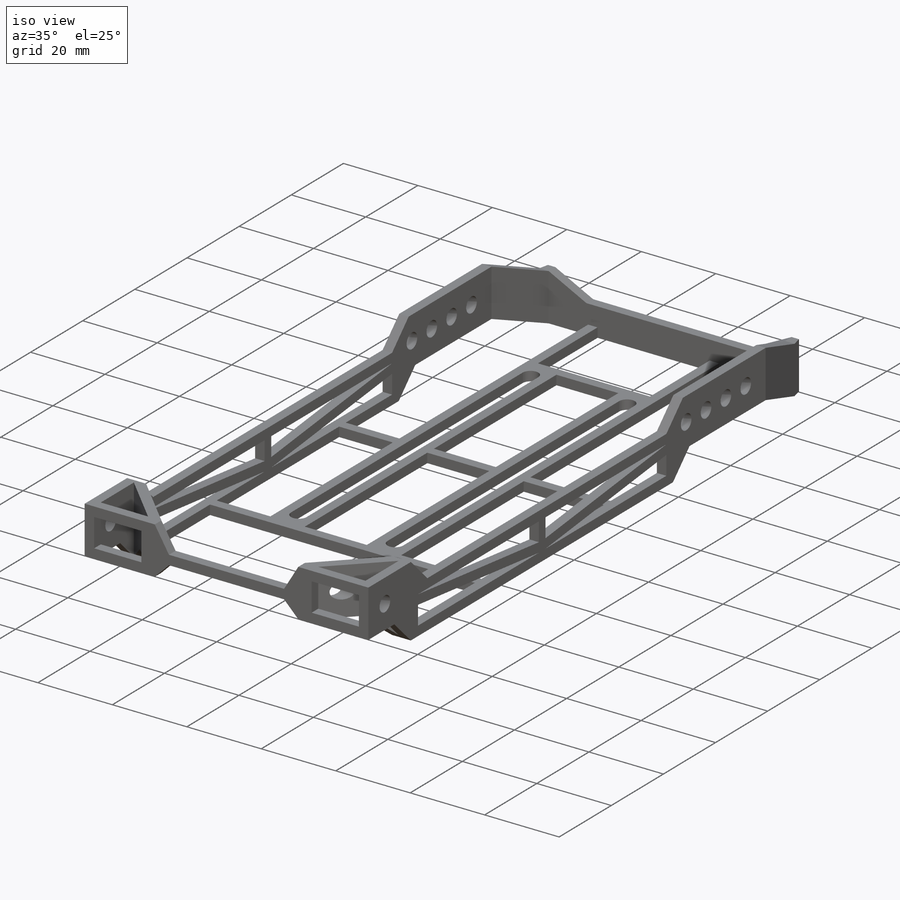
[diagram: iso view]
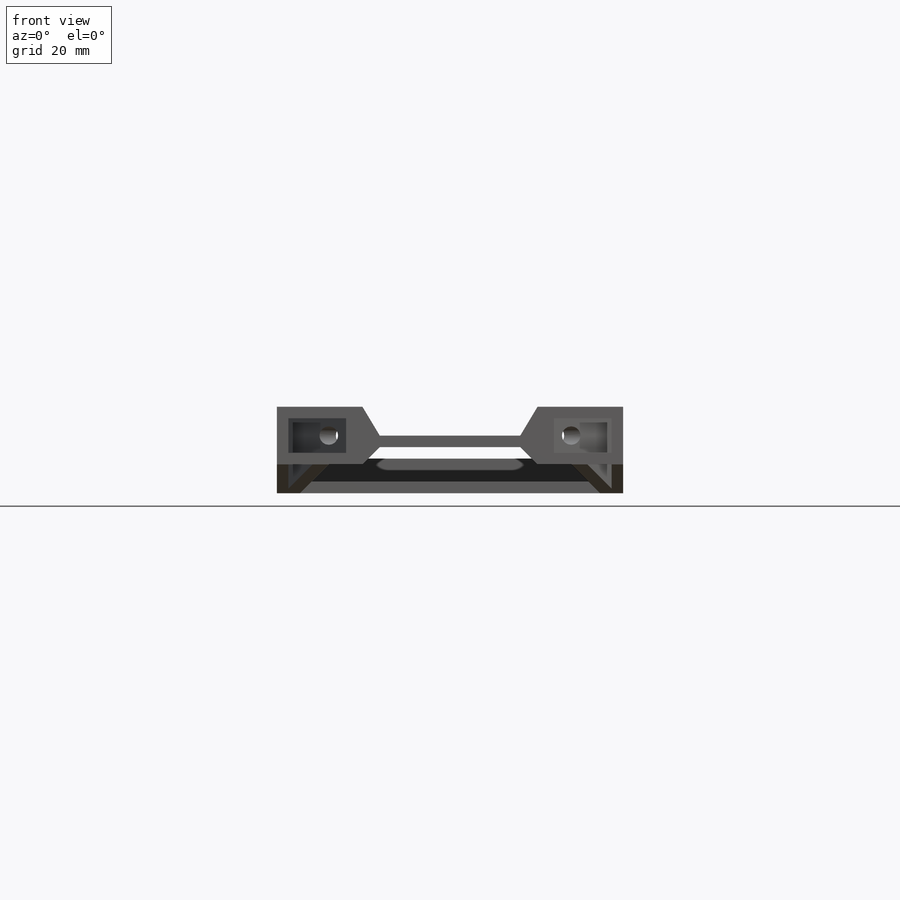
[diagram: front view]
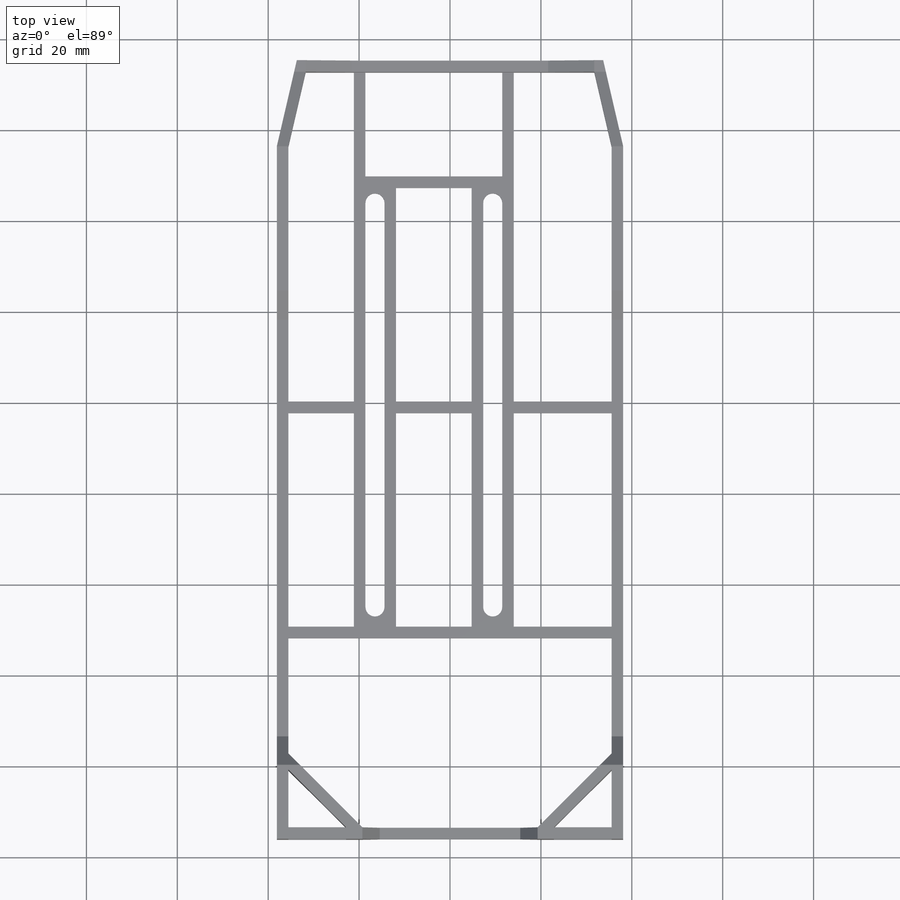
[diagram: top view]
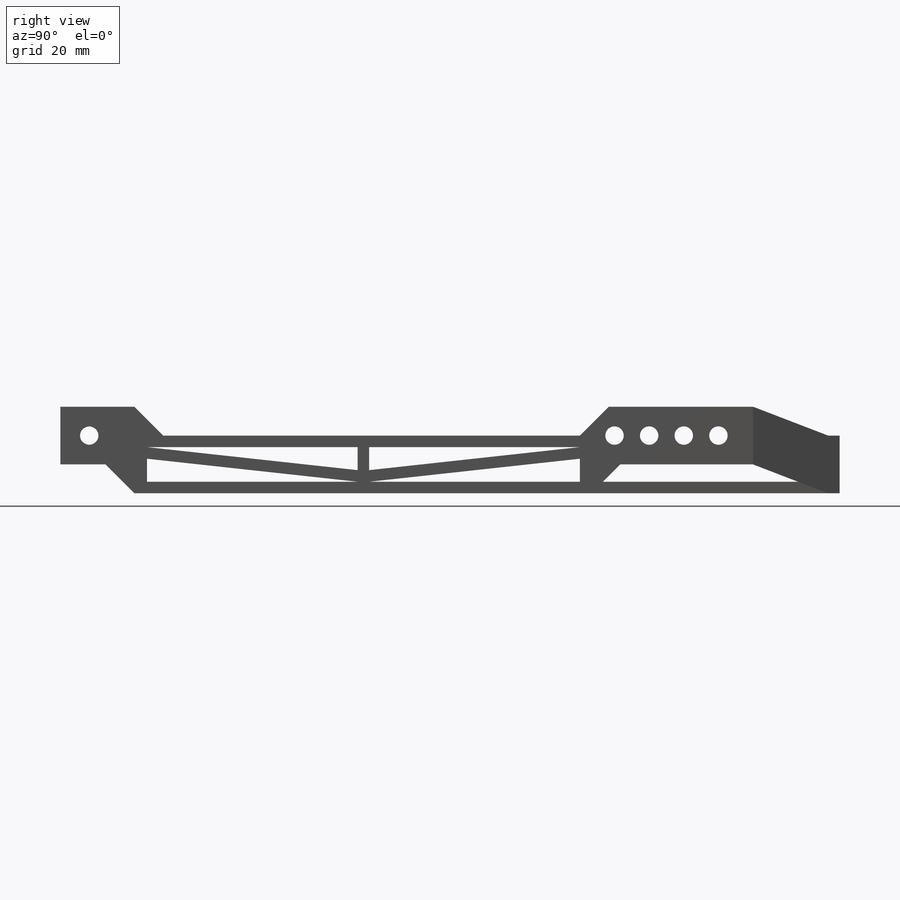
[diagram: right view]
SOLIDWORKS PART (.sldprt)
format: sldprt  version: not decoded by parser v0  size: 865,280 bytes
history: native  units: mm
features: sketch x16, cut_extrude x9, extrude x7, material x1 (+11 scaffold rows collapsed)
feature tree (44):
  scaffold x11  (default folders/planes/origin — collapsed)
  material  "Material <not specified>"
  sketch  "Sketch1"  dims[c1.D1=152.4mm c1.D2=76.2mm c1.D4=2.54mm c1.D5=2.54mm c1.D6=2.54mm c1.D7=2.54mm c2.D4=12.7mm c2.D5=12.7mm c2.D6=12.7mm c2.D7=12.7mm c2.D8=12.7mm c2.D9=2.54mm c2.D10=2.54mm c2.D11=2.54mm c2.D12=2.54mm c3.D4=12.7mm c3.D5=71.12mm c3.D6=38.1mm c3.D9=12.7mm c3.D10=76.2mm c3.D13=2.54mm c3.D3=2.54mm]
  extrude  "Boss-Extrude1"  Depth=12.7mm
  sketch  "Sketch7"  dims[c1.D1=3.175mm c1.D2=3.175mm c1.D18=3.175mm c1.D21=3.175mm c1.D27=3.175mm c1.D3=3.175mm c1.D4=3.175mm c1.D17=3.175mm c2.D18=3.175mm c2.D3=6.35mm c2.D4=6.35mm c2.D5=6.35mm c2.D6=11.43mm c2.D7=19.05mm c2.D8=45.085mm c2.D9=45.085mm c2.D10=12.7mm c2.D11=2.54mm c2.D12=2.54mm c2.D13=2.54mm c2.D14=2.54mm c2.D15=2.54mm c2.D16=2.54mm c2.D17=7.62mm c2.D19=45.085mm c2.D20=6.35mm c2.D22=7.62mm c2.D23=6.35mm c2.D24=45.085mm c2.D25=38.1mm c3.D10=2.54mm c3.D26=19.05mm c3.D28=7.62mm c3.D29=6.35mm c3.D25=2.54mm c3.D30=133.35mm c3.D8=38.1mm c3.D9=38.1mm c3.D19=46.355mm c3.D24=2.54mm c3.D20=7.62mm c3.D21=7.62mm c3.D22=7.62mm c3.D23=7.62mm c4.D24=7.62mm c4.D27=11.43mm]
  cut_extrude  "Cut-Extrude3"  [1 undecoded]
  sketch  "Sketch8"  dims[D1=101.6mm D2=6.35mm]
  extrude  "Boss-Extrude3"  Depth=2.54mm
  sketch  "Sketch9"  dims[c1.D4=~5.883747mm c1.D6=4.191mm c1.D7=4.191mm c1.D8=4.191mm c1.D1=15.24mm c1.D2=11.43mm c1.D3=19.05mm c2.D4=12.954mm c2.D5=12.954mm c2.D9=37.084mm c2.D10=10.922mm c3.D9=10.922mm c3.D11=5.842mm c3.D12=5.842mm c3.D13=11.684mm c3.D2=37.084mm c4.D9=18.542mm c4.D10=0.508mm c4.D14=71.12mm c5.D9=71.12mm c5.D2=71.12mm c5.D1=88.9mm c6.D2=50.8mm c6.D9=88.9mm c6.D10=5.842mm c6.D11=26.162mm c7.D2=25.908mm c7.D4=5.842mm c7.D5=2.54mm c7.D7=2.54mm c7.D11=2.54mm c7.D12=2.54mm c7.D13=2.54mm c7.D14=2.54mm c7.D15=2.54mm c7.D16=0.0mm c7.D17=0.0mm c7.D18=0.0mm c7.D19=2.54mm c7.D20=2.54mm c8.D15=21.5265mm c8.D16=14.4145mm c8.D17=2.54mm c8.D13=2.54mm c9.D16=39.37mm c9.D17=54.61mm c10.D16=48.26mm c10.D17=2.54mm c10.D21=46.99mm c10.D18=0.0mm c11.D16=48.26mm c11.D18=21.5265mm c12.D16=46.99mm c12.D18=21.5265mm c12.D22=14.4145mm c12.D23=2.54mm c13.D18=21.5265mm]
  cut_extrude  "Cut-Extrude4"  Depth=2.54mm
  sketch  "Sketch16"  dims[c1.D1=63.5mm c1.D2=16.51mm c1.D3=16.51mm c1.D4=6.35mm c1.D5=~3.228751mm c2.D1=2.54mm c2.D2=2.54mm c2.D3=2.54mm c2.D4=76.2mm c3.D1=16.51mm c3.D2=3.81mm c3.D3=3.81mm c3.D4=2.54mm c3.D5=~19.783514mm c4.D5=0.0deg c5.D5=~2.474954mm]
  extrude  "Boss-Extrude4"  Depth=12.7mm
  sketch  "Sketch19"  dims[D1=2.54mm D2=2.54mm]
  extrude  "Boss-Extrude6"  Depth=25.4mm
  sketch  "Sketch21"  dims[D1=38.1mm]
  extrude  "Boss-Extrude7"  Depth=6.35mm
  sketch  "Sketch24"  dims[D1=3.81mm D2=3.81mm D3=3.81mm D4=3.81mm]
  extrude  "Boss-Extrude8"  Depth=6.35mm
  sketch  "Sketch26"  dims[D1=6.35mm D2=6.35mm D3=6.35mm D4=16.51mm]
  cut_extrude  "Cut-Extrude9"  [1 undecoded]
  sketch  "Sketch27"  dims[D1=3.81mm D2=3.81mm D3=3.81mm D4=3.81mm D5=3.81mm D6=2.54mm]
  cut_extrude  "Cut-Extrude10"  Depth=2.54mm
  sketch  "Sketch28"  dims[c1.D1=2.54mm c1.D2=2.54mm c1.D3=2.54mm c1.D4=7.62mm c2.D3=2.54mm c2.D4=~2.935491mm c3.D4=0.1deg c3.D5=2.54mm c3.D6=2.54mm c3.D7=~2.46665mm c3.D8=2.54mm c3.D9=2.54mm c3.D10=2.54mm c3.D11=2.54mm c3.D12=~3.905268mm c4.D12=0.1deg c4.D13=2.54mm c4.D14=2.54mm c4.D15=~2.757898mm c5.D14=2.54mm c5.D7=2.54mm c5.D3=12.7mm c5.D4=12.7mm c5.D6=12.7mm c6.D7=12.7mm]
  cut_extrude  "Cut-Extrude11"  Depth=2.54mm
  sketch  "Sketch29"  dims[D1=6.35mm D2=6.35mm D3=6.35mm D4=16.51mm D5=16.51mm D6=6.35mm D7=29.21mm]
  cut_extrude  "Cut-Extrude12"  Depth=12.7mm
  sketch  "Sketch30"  dims[c1.D1=6.35mm c1.D2=16.51mm c1.D3=16.51mm c1.D4=6.35mm c1.D5=6.35mm c1.D6=54.61mm c2.D5=29.21mm c2.D6=6.35mm]
  cut_extrude  "Cut-Extrude13"  Depth=12.7mm
  sketch  "Sketch32"  dims[D3=4.064mm D4=4.064mm D5=4.064mm D6=4.064mm D7=4.064mm D1=6.35mm D2=6.35mm D8=6.35mm D9=6.35mm D10=6.35mm D11=6.35mm D12=7.62mm D13=7.62mm D14=7.62mm D15=7.62mm]
  cut_extrude  "Cut-Extrude15"  [1 undecoded]
  sketch  "Sketch33"  dims[D1=2.54mm D2=46.99mm]
  extrude  "Boss-Extrude9"  Depth=15.24mm
  sketch  "Sketch35"  dims[D1=5.08mm D2=10.16mm D3=10.16mm]
  cut_extrude  "Cut-Extrude17"  Depth=2.54mm
decode coverage: 29 of 32 modeling features carry decoded parameters
note: ~ marks probable driven/reference dimensions
note: 3 parameter values undecoded
summary: no parameter record found for 3 features
note: suppression state not decoded; provenance and decode notes live in map.json
